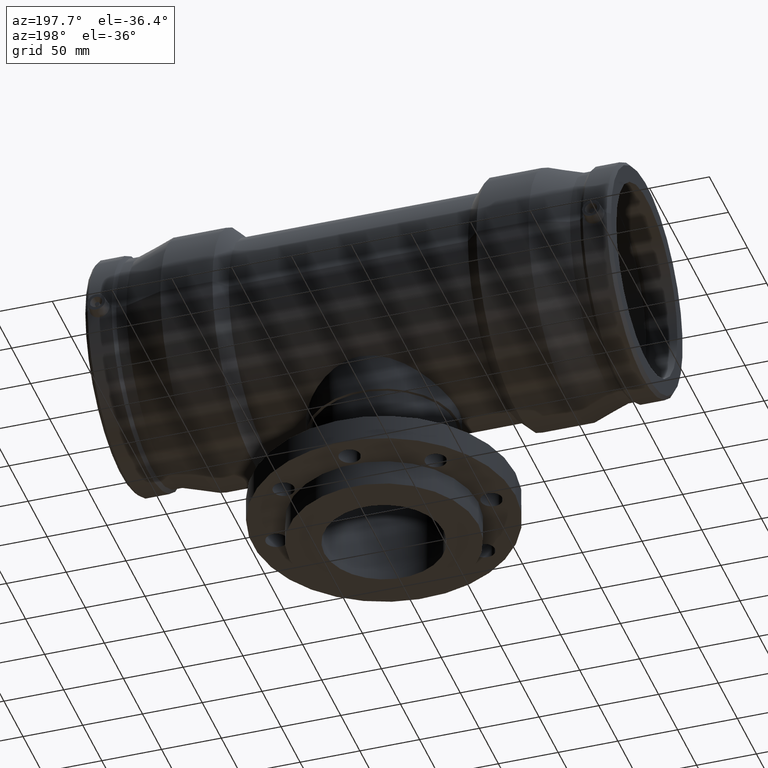
[diagram: clean part render]
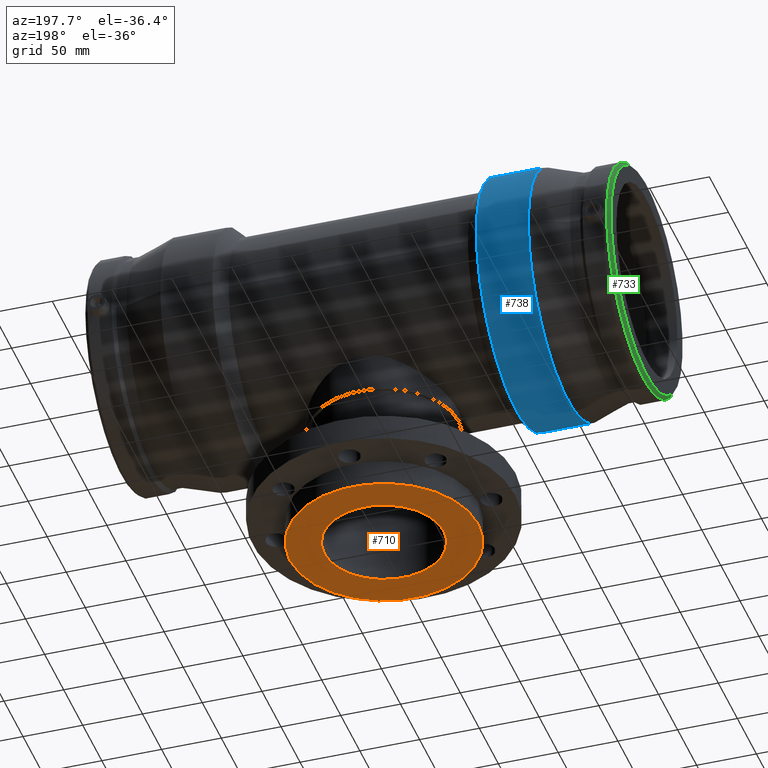
[diagram: same view with three faces highlighted in distinct colors, each labeled with its STEP entity id]
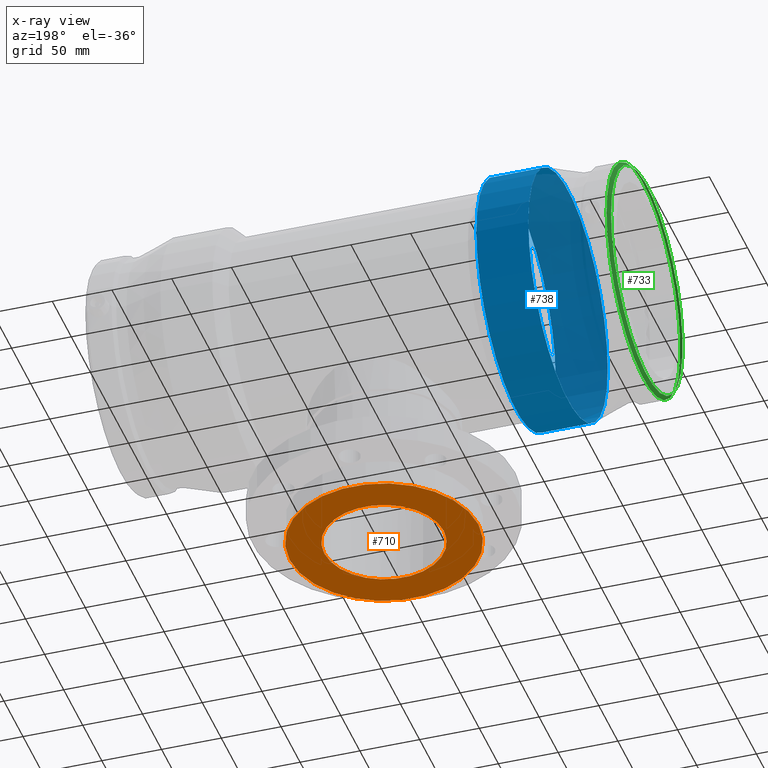
[diagram: x-ray of the same camera — body ghosted, the three highlighted faces saturated]
A machine part, auxiliary view with three faces highlighted in distinct colors.
The next image is the same camera in x-ray (body ghosted, the three faces saturated) — at least one of them is partly hidden behind the body in this view.
Their STEP definitions:

[orange] entity #710 — the highlighted planar face has unit normal (-0, 0, -1).
#30=PLANE('',#789);
#54=FACE_BOUND('',#297,.T.);
#137=CIRCLE('',#786,50.);
#139=CIRCLE('',#790,79.);
#226=FACE_OUTER_BOUND('',#296,.T.);
#296=EDGE_LOOP('',(#582));
#297=EDGE_LOOP('',(#583));
#437=VERTEX_POINT('',#1447);
#440=VERTEX_POINT('',#1520);
#507=EDGE_CURVE('',#437,#437,#137,.T.);
#510=EDGE_CURVE('',#440,#440,#139,.T.);
#582=ORIENTED_EDGE('',*,*,#510,.T.);
#583=ORIENTED_EDGE('',*,*,#507,.F.);
#710=ADVANCED_FACE('',(#226,#54),#30,.T.);
#786=AXIS2_PLACEMENT_3D('',#1448,#937,#938);
#789=AXIS2_PLACEMENT_3D('',#1519,#943,#944);
#790=AXIS2_PLACEMENT_3D('',#1521,#945,#946);
#937=DIRECTION('center_axis',(-1.22464679914735E-16,0.,-1.));
#938=DIRECTION('ref_axis',(1.,0.,-1.22464679914735E-16));
#943=DIRECTION('center_axis',(-1.22464679914735E-16,0.,-1.));
#944=DIRECTION('ref_axis',(-1.,0.,0.));
#945=DIRECTION('center_axis',(-1.22464679914735E-16,0.,-1.));
#946=DIRECTION('ref_axis',(1.,0.,-1.22464679914735E-16));
#1447=CARTESIAN_POINT('',(-50.,0.,-210.));
#1448=CARTESIAN_POINT('Origin',(-2.57175827820944E-14,0.,-210.));
#1519=CARTESIAN_POINT('Origin',(-50.,0.,-210.));
#1520=CARTESIAN_POINT('',(-79.,0.,-210.));
#1521=CARTESIAN_POINT('Origin',(-2.57175827820944E-14,0.,-210.));

[blue] entity #738 — the highlighted cylindrical surface (bore or boss wall) has radius 104 mm, axis along (1, 0, 0).
#98=FACE_BOUND('',#369,.T.);
#165=CIRCLE('',#843,104.);
#166=CIRCLE('',#845,104.);
#206=CYLINDRICAL_SURFACE('',#844,104.);
#254=FACE_OUTER_BOUND('',#368,.T.);
#368=EDGE_LOOP('',(#654));
#369=EDGE_LOOP('',(#655));
#468=VERTEX_POINT('',#1669);
#469=VERTEX_POINT('',#1672);
#538=EDGE_CURVE('',#468,#468,#165,.T.);
#539=EDGE_CURVE('',#469,#469,#166,.T.);
#654=ORIENTED_EDGE('',*,*,#538,.T.);
#655=ORIENTED_EDGE('',*,*,#539,.F.);
#738=ADVANCED_FACE('',(#254,#98),#206,.T.);
#843=AXIS2_PLACEMENT_3D('',#1670,#1051,#1052);
#844=AXIS2_PLACEMENT_3D('',#1671,#1053,#1054);
#845=AXIS2_PLACEMENT_3D('',#1673,#1055,#1056);
#1051=DIRECTION('center_axis',(1.,0.,0.));
#1052=DIRECTION('ref_axis',(0.,0.,-1.));
#1053=DIRECTION('center_axis',(1.,0.,0.));
#1054=DIRECTION('ref_axis',(0.,1.,0.));
#1055=DIRECTION('center_axis',(1.,0.,0.));
#1056=DIRECTION('ref_axis',(0.,0.,-1.));
#1669=CARTESIAN_POINT('',(-154.,104.,0.));
#1670=CARTESIAN_POINT('Origin',(-154.,0.,0.));
#1671=CARTESIAN_POINT('Origin',(-132.25,0.,0.));
#1672=CARTESIAN_POINT('',(-110.5,104.,0.));
#1673=CARTESIAN_POINT('Origin',(-110.5,0.,0.));

[green] entity #733 — the highlighted conical surface has half-angle 45 deg.
#18=CONICAL_SURFACE('',#834,95.2692,45.);
#92=FACE_BOUND('',#358,.T.);
#159=CIRCLE('',#832,93.8184);
#161=CIRCLE('',#835,96.72);
#249=FACE_OUTER_BOUND('',#357,.T.);
#357=EDGE_LOOP('',(#643));
#358=EDGE_LOOP('',(#644));
#462=VERTEX_POINT('',#1652);
#464=VERTEX_POINT('',#1657);
#532=EDGE_CURVE('',#462,#462,#159,.T.);
#534=EDGE_CURVE('',#464,#464,#161,.T.);
#643=ORIENTED_EDGE('',*,*,#532,.T.);
#644=ORIENTED_EDGE('',*,*,#534,.F.);
#733=ADVANCED_FACE('',(#249,#92),#18,.T.);
#832=AXIS2_PLACEMENT_3D('',#1653,#1029,#1030);
#834=AXIS2_PLACEMENT_3D('',#1656,#1033,#1034);
#835=AXIS2_PLACEMENT_3D('',#1658,#1035,#1036);
#1029=DIRECTION('center_axis',(1.,0.,0.));
#1030=DIRECTION('ref_axis',(0.,0.,-1.));
#1033=DIRECTION('center_axis',(1.,0.,0.));
#1034=DIRECTION('ref_axis',(0.,1.,0.));
#1035=DIRECTION('center_axis',(1.,0.,0.));
#1036=DIRECTION('ref_axis',(0.,0.,-1.));
#1652=CARTESIAN_POINT('',(-220.,93.8184,0.));
#1653=CARTESIAN_POINT('Origin',(-220.,0.,0.));
#1656=CARTESIAN_POINT('Origin',(-218.5492,0.,0.));
#1657=CARTESIAN_POINT('',(-217.0984,96.72,0.));
#1658=CARTESIAN_POINT('Origin',(-217.0984,0.,0.));